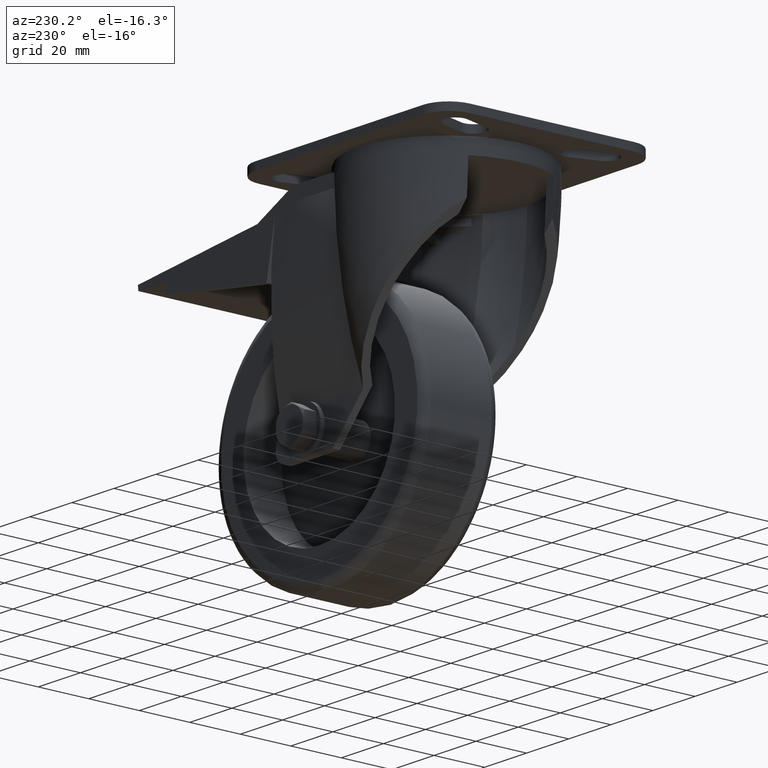
[diagram: clean part render]
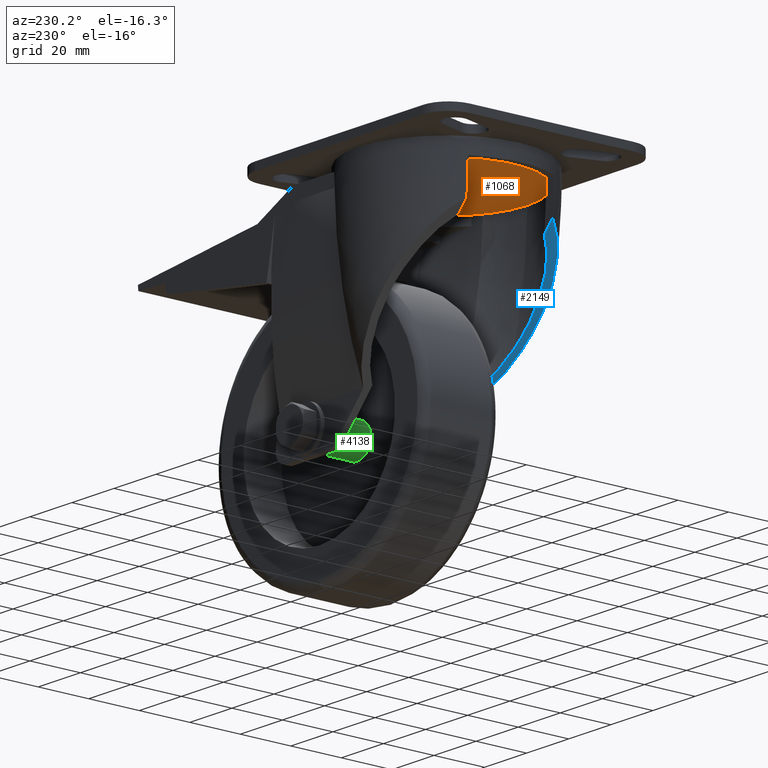
[diagram: same view with three faces highlighted in distinct colors, each labeled with its STEP entity id]
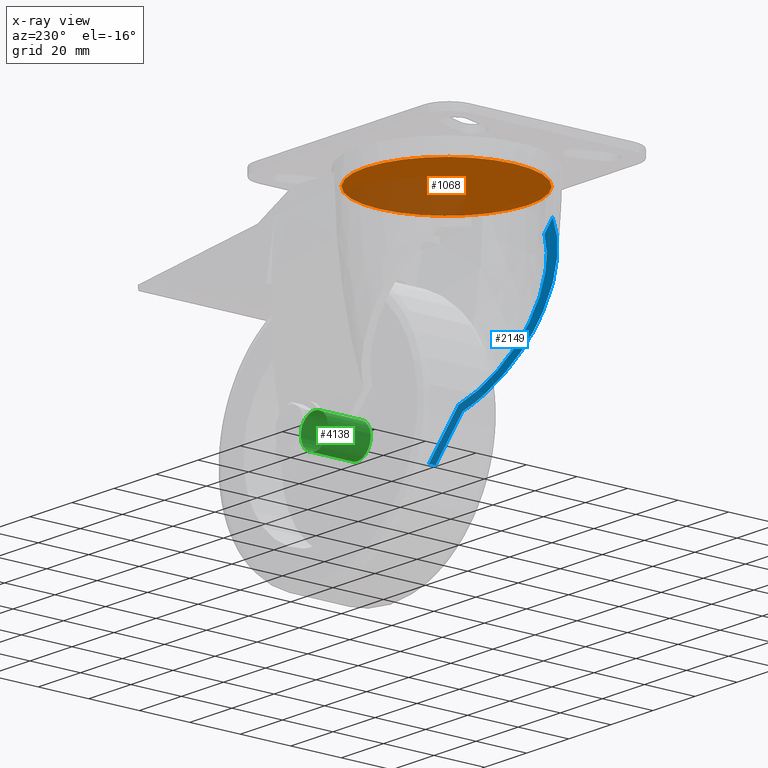
[diagram: x-ray of the same camera — body ghosted, the three highlighted faces saturated]
A machine part, auxiliary view with three faces highlighted in distinct colors.
The next image is the same camera in x-ray (body ghosted, the three faces saturated) — at least one of them is partly hidden behind the body in this view.
Their STEP definitions:

[orange] entity #1068 — the highlighted planar face has unit normal (0, 0, -1).
#887=CARTESIAN_POINT('',(-49.999999999799968,32.000233137938523,-8.961912570713196));
#888=VERTEX_POINT('',#887);
#889=CARTESIAN_POINT('',(-49.999999999799911,-32.000233137938956,-8.961912570713192));
#890=VERTEX_POINT('',#889);
#891=CARTESIAN_POINT('',(-49.999999999799968,-1.801013E-013,-8.961912570713194));
#892=DIRECTION('',(6.938894E-018,-6.123234E-017,-1.0));
#893=DIRECTION('',(0.0,-1.0,6.123234E-017));
#894=AXIS2_PLACEMENT_3D('',#891,#892,#893);
#895=CIRCLE('',#894,32.000233137938700);
#896=EDGE_CURVE('',#888,#890,#895,.T.);
#898=CARTESIAN_POINT('',(-49.999999999799968,-1.801013E-013,-8.961912570713194));
#899=DIRECTION('',(6.938894E-018,-6.123234E-017,-1.0));
#900=DIRECTION('',(0.0,-1.0,6.123234E-017));
#901=AXIS2_PLACEMENT_3D('',#898,#899,#900);
#902=CIRCLE('',#901,32.000233137938700);
#903=EDGE_CURVE('',#890,#888,#902,.T.);
#1059=CARTESIAN_POINT('',(14.000466276077475,-64.000466275877557,-8.961912570713134));
#1060=DIRECTION('',(0.0,0.0,-1.0));
#1061=DIRECTION('',(-1.0,0.0,0.0));
#1062=AXIS2_PLACEMENT_3D('',#1059,#1060,#1061);
#1063=PLANE('',#1062);
#1064=ORIENTED_EDGE('',*,*,#903,.T.);
#1065=ORIENTED_EDGE('',*,*,#896,.T.);
#1066=EDGE_LOOP('',(#1064,#1065));
#1067=FACE_OUTER_BOUND('',#1066,.T.);
#1068=ADVANCED_FACE('',(#1067),#1063,.T.);

[blue] entity #2149 — the highlighted planar face has unit normal (-0.7406, -0, -0.672).
#905=CARTESIAN_POINT('',(-49.999999999799911,-26.763269676771543,-55.371295994122988));
#906=VERTEX_POINT('',#905);
#914=CARTESIAN_POINT('',(-75.997829618489433,-17.070057319302190,-26.720628955868161));
#915=VERTEX_POINT('',#914);
#916=CARTESIAN_POINT('',(-49.999999999799854,-26.763269676771600,-55.371295994122875));
#917=CARTESIAN_POINT('',(-50.614587426501828,-26.909073834747133,-54.693995619953228));
#918=CARTESIAN_POINT('',(-52.219219619068269,-27.226570763894941,-52.925625593073960));
#919=CARTESIAN_POINT('',(-54.880962621150388,-27.487757558576803,-49.992276399796424));
#920=CARTESIAN_POINT('',(-57.363643355851025,-27.424364957538572,-47.256261125074161));
#921=CARTESIAN_POINT('',(-60.285260750926966,-27.082730510361742,-44.036519763673539));
#922=CARTESIAN_POINT('',(-63.539265957512796,-26.317679306233018,-40.450473469235931));
#923=CARTESIAN_POINT('',(-67.287113011007264,-24.696424885429352,-36.320193522258592));
#924=CARTESIAN_POINT('',(-69.988399160700979,-22.983679663955698,-33.343265835584987));
#925=CARTESIAN_POINT('',(-72.238062818980850,-21.217583582109810,-30.864045610431727));
#926=CARTESIAN_POINT('',(-74.110657615077756,-19.427890744904982,-28.800365341702612));
#927=CARTESIAN_POINT('',(-75.461474775313704,-17.791388445375514,-27.311719795822508));
#928=CARTESIAN_POINT('',(-75.997834550662461,-17.070049722941075,-26.720629479376210));
#929=B_SPLINE_CURVE_WITH_KNOTS('',3,(#916,#917,#918,#919,#920,#921,#922,#923,#924,#925,#926,#927,#928),.UNSPECIFIED.,.F.,.U.,(4,1,1,1,1,1,1,1,1,1,4),(0.0,2.778685228067535,7.223742526664044,11.899304513463292,13.853604178024506,20.304977110839516,26.578740725815894,31.240803553927275,33.394100059583572,37.929782912720867,41.158542147736640),.UNSPECIFIED.);
#930=EDGE_CURVE('',#906,#915,#929,.T.);
#1032=CARTESIAN_POINT('',(-35.156391064253967,-17.070057319302080,-71.729557568106372));
#1033=VERTEX_POINT('',#1032);
#1043=CARTESIAN_POINT('',(-35.156387806788416,-17.070053926571020,-71.729559016426720));
#1044=CARTESIAN_POINT('',(-35.753057416879642,-17.843208513759649,-71.072004805890685));
#1045=CARTESIAN_POINT('',(-37.260875185255657,-19.592675801133183,-69.410331810364312));
#1046=CARTESIAN_POINT('',(-39.350337934631625,-21.481499034311767,-67.107657124282412));
#1047=CARTESIAN_POINT('',(-41.900756098277270,-23.354176920576393,-64.296992713220561));
#1048=CARTESIAN_POINT('',(-44.640623778016675,-24.943198473012686,-61.277546827206038));
#1049=CARTESIAN_POINT('',(-47.572875730277190,-26.115073873999293,-58.046085791706730));
#1050=CARTESIAN_POINT('',(-49.380276327878732,-26.616247000686670,-56.054256719704767));
#1051=CARTESIAN_POINT('',(-49.999999999799854,-26.763269676771600,-55.371295994122875));
#1052=B_SPLINE_CURVE_WITH_KNOTS('',3,(#1043,#1044,#1045,#1046,#1047,#1048,#1049,#1050,#1051),.UNSPECIFIED.,.F.,.U.,(4,1,1,1,1,1,4),(0.0,3.533590945473480,8.521628627790923,10.893577073032283,16.225339000133832,21.627750609693020,24.429674919914348),.UNSPECIFIED.);
#1053=EDGE_CURVE('',#1033,#906,#1052,.T.);
#1132=CARTESIAN_POINT('',(-49.999999999799911,-29.830632426225193,-55.371295994122647));
#1133=VERTEX_POINT('',#1132);
#1141=CARTESIAN_POINT('',(-34.001522241716145,-19.694907978292079,-73.002270044212594));
#1142=VERTEX_POINT('',#1141);
#1143=CARTESIAN_POINT('',(-49.999999999799911,-29.830632426225193,-55.371295994122534));
#1144=CARTESIAN_POINT('',(-49.332071627531718,-29.674264299426071,-56.107380262691663));
#1145=CARTESIAN_POINT('',(-47.487297262128948,-29.170065499494413,-58.140396737862829));
#1146=CARTESIAN_POINT('',(-44.027750289801133,-27.833116941151061,-61.952958453050087));
#1147=CARTESIAN_POINT('',(-40.456232197667873,-25.759484175648723,-65.888916580832927));
#1148=CARTESIAN_POINT('',(-37.328937346975806,-23.258503914869166,-69.335323491155009));
#1149=CARTESIAN_POINT('',(-35.417269467878313,-21.365926033237553,-71.442057744986442));
#1150=CARTESIAN_POINT('',(-34.342528701804049,-20.114222904187450,-72.626468242591130));
#1151=CARTESIAN_POINT('',(-34.001518002184014,-19.694916795246897,-73.002276034714299));
#1152=B_SPLINE_CURVE_WITH_KNOTS('',3,(#1143,#1144,#1145,#1146,#1147,#1148,#1149,#1150,#1151),.UNSPECIFIED.,.F.,.U.,(4,1,1,1,1,1,4),(0.0,3.018874180140403,8.370022439182032,15.940226582114182,20.087509144883072,24.203299280373241,26.178165322942448),.UNSPECIFIED.);
#1153=EDGE_CURVE('',#1133,#1142,#1152,.T.);
#1256=CARTESIAN_POINT('',(-79.925217987626908,-17.070057319302077,-22.392487024620888));
#1257=VERTEX_POINT('',#1256);
#1266=CARTESIAN_POINT('',(-79.925244709815004,-17.070010174956519,-22.392489157873907));
#1267=CARTESIAN_POINT('',(-79.408977666023574,-17.895604017642835,-22.961436465839139));
#1268=CARTESIAN_POINT('',(-78.042745384829416,-19.861610594554246,-24.467025675522788));
#1269=CARTESIAN_POINT('',(-76.087325662058404,-22.067539944295458,-26.622003785112607));
#1270=CARTESIAN_POINT('',(-73.810272068798056,-24.168828758854048,-29.131405356600791));
#1271=CARTESIAN_POINT('',(-71.157591446752136,-26.197055671831450,-32.054769098896429));
#1272=CARTESIAN_POINT('',(-67.592261057688020,-28.189894500381413,-35.983907676058777));
#1273=CARTESIAN_POINT('',(-63.441468351096162,-29.699021199965856,-40.558250493472258));
#1274=CARTESIAN_POINT('',(-60.231335320058577,-30.313872181312732,-44.095947787139494));
#1275=CARTESIAN_POINT('',(-57.340726478730858,-30.563924567772247,-47.281516447375395));
#1276=CARTESIAN_POINT('',(-54.864692663273559,-30.579007780789269,-50.010206559427672));
#1277=CARTESIAN_POINT('',(-52.204215245154273,-30.291226487416751,-52.942161023641631));
#1278=CARTESIAN_POINT('',(-50.589173966081148,-29.968563427948098,-54.722002288335716));
#1279=CARTESIAN_POINT('',(-49.999999999799911,-29.830632426225193,-55.371295994122534));
#1280=B_SPLINE_CURVE_WITH_KNOTS('',3,(#1266,#1267,#1268,#1269,#1270,#1271,#1272,#1273,#1274,#1275,#1276,#1277,#1278,#1279),.UNSPECIFIED.,.F.,.U.,(4,1,1,1,1,1,1,1,1,1,1,4),(0.0,3.384686483772321,8.470962048703100,10.930897247991156,15.341025147912760,21.768512934842406,27.898016032199333,34.386944539795678,36.195406228810349,40.822976601638700,45.432673832342914,48.095523972636762),.UNSPECIFIED.);
#1281=EDGE_CURVE('',#1257,#1133,#1280,.T.);
#1315=CARTESIAN_POINT('',(-79.925217987626908,-17.070057319302077,-22.392487024620888));
#1316=DIRECTION('',(0.671989936580124,0.0,-0.740560277853897));
#1317=VECTOR('',#1316,5.844415452297811);
#1318=LINE('',#1315,#1317);
#1319=EDGE_CURVE('',#1257,#915,#1318,.T.);
#2115=CARTESIAN_POINT('',(-21.103968454595076,-30.581696644038193,-87.215899588778029));
#2116=DIRECTION('',(-0.740560277853895,-2.901351E-016,-0.671989936580127));
#2117=DIRECTION('',(-0.671989936580127,-1.905762E-016,0.740560277853895));
#2118=AXIS2_PLACEMENT_3D('',#2115,#2116,#2117);
#2119=PLANE('',#2118);
#2120=ORIENTED_EDGE('',*,*,#1319,.T.);
#2121=ORIENTED_EDGE('',*,*,#930,.F.);
#2122=ORIENTED_EDGE('',*,*,#1053,.F.);
#2123=CARTESIAN_POINT('',(-21.109351848641438,-17.070057319302197,-87.209966869292600));
#2124=VERTEX_POINT('',#2123);
#2125=CARTESIAN_POINT('',(-35.156391064253967,-17.070057319302080,-71.729557568106372));
#2126=DIRECTION('',(0.671989936580127,8.497833E-016,-0.740560277853894));
#2127=VECTOR('',#2126,20.903645205016566);
#2128=LINE('',#2125,#2127);
#2129=EDGE_CURVE('',#1033,#2124,#2128,.T.);
#2130=ORIENTED_EDGE('',*,*,#2129,.T.);
#2131=CARTESIAN_POINT('',(-21.109351848641438,-19.694916795246929,-87.209966869292600));
#2132=VERTEX_POINT('',#2131);
#2133=CARTESIAN_POINT('',(-21.109351848641445,-19.694916795246836,-87.209966869292600));
#2134=DIRECTION('',(0.0,1.0,0.0));
#2135=VECTOR('',#2134,2.624859475944760);
#2136=LINE('',#2133,#2135);
#2137=EDGE_CURVE('',#2132,#2124,#2136,.T.);
#2138=ORIENTED_EDGE('',*,*,#2137,.F.);
#2139=CARTESIAN_POINT('',(-34.001522241716145,-19.694907978292079,-73.002270044212594));
#2140=DIRECTION('',(0.671989936580056,-0.000000459573891,-0.740560277853816));
#2141=VECTOR('',#2140,19.185064673269647);
#2142=LINE('',#2139,#2141);
#2143=EDGE_CURVE('',#1142,#2132,#2142,.T.);
#2144=ORIENTED_EDGE('',*,*,#2143,.F.);
#2145=ORIENTED_EDGE('',*,*,#1153,.F.);
#2146=ORIENTED_EDGE('',*,*,#1281,.F.);
#2147=EDGE_LOOP('',(#2120,#2121,#2122,#2130,#2138,#2144,#2145,#2146));
#2148=FACE_OUTER_BOUND('',#2147,.T.);
#2149=ADVANCED_FACE('',(#2148),#2119,.T.);

[green] entity #4138 — the highlighted cylindrical surface (bore or boss wall) has radius 6.5 mm, axis along (-0, 1, -0).
#4088=CARTESIAN_POINT('',(-7.500010389969305,-4.118294E-013,-80.075073123268339));
#4089=DIRECTION('',(-5.273559E-016,1.0,-6.123234E-017));
#4090=DIRECTION('',(6.938894E-018,6.123234E-017,1.0));
#4091=AXIS2_PLACEMENT_3D('',#4088,#4089,#4090);
#4092=CYLINDRICAL_SURFACE('',#4091,6.499999999973994);
#4093=CARTESIAN_POINT('',(-7.500010389969248,-2.977446E-013,-73.575073123294374));
#4094=VERTEX_POINT('',#4093);
#4095=CARTESIAN_POINT('',(-7.500010389969305,-4.122274E-013,-86.575073123242333));
#4096=VERTEX_POINT('',#4095);
#4097=CARTESIAN_POINT('',(-7.500010389969305,-4.118294E-013,-80.075073123268339));
#4098=DIRECTION('',(-5.273559E-016,1.0,-6.123234E-017));
#4099=DIRECTION('',(6.938894E-018,6.123234E-017,1.0));
#4100=AXIS2_PLACEMENT_3D('',#4097,#4098,#4099);
#4101=CIRCLE('',#4100,6.499999999973994);
#4102=EDGE_CURVE('',#4094,#4096,#4101,.T.);
#4103=ORIENTED_EDGE('',*,*,#4102,.T.);
#4104=CARTESIAN_POINT('',(-7.500010389969305,-4.118294E-013,-80.075073123268339));
#4105=DIRECTION('',(-5.273559E-016,1.0,-6.123234E-017));
#4106=DIRECTION('',(6.938894E-018,6.123234E-017,1.0));
#4107=AXIS2_PLACEMENT_3D('',#4104,#4105,#4106);
#4108=CIRCLE('',#4107,6.499999999973994);
#4109=EDGE_CURVE('',#4096,#4094,#4108,.T.);
#4110=ORIENTED_EDGE('',*,*,#4109,.T.);
#4111=CARTESIAN_POINT('',(-7.500010389969305,16.929942680698147,-73.575073123294374));
#4112=VERTEX_POINT('',#4111);
#4113=CARTESIAN_POINT('',(-7.500010389969248,-2.977446E-013,-73.575073123294374));
#4114=DIRECTION('',(0.0,1.0,0.0));
#4115=VECTOR('',#4114,16.929942680698510);
#4116=LINE('',#4113,#4115);
#4117=EDGE_CURVE('',#4094,#4112,#4116,.T.);
#4118=ORIENTED_EDGE('',*,*,#4117,.T.);
#4119=CARTESIAN_POINT('',(-7.500010389969305,16.929942680698144,-86.575073123242333));
#4120=VERTEX_POINT('',#4119);
#4121=CARTESIAN_POINT('',(-7.500010389969305,16.929942680698147,-80.075073123268339));
#4122=DIRECTION('',(-5.273559E-016,1.0,-6.123234E-017));
#4123=DIRECTION('',(6.938894E-018,6.123234E-017,1.0));
#4124=AXIS2_PLACEMENT_3D('',#4121,#4122,#4123);
#4125=CIRCLE('',#4124,6.499999999973994);
#4126=EDGE_CURVE('',#4120,#4112,#4125,.T.);
#4127=ORIENTED_EDGE('',*,*,#4126,.F.);
#4128=CARTESIAN_POINT('',(-7.500010389969305,16.929942680698147,-80.075073123268339));
#4129=DIRECTION('',(-5.273559E-016,1.0,-6.123234E-017));
#4130=DIRECTION('',(6.938894E-018,6.123234E-017,1.0));
#4131=AXIS2_PLACEMENT_3D('',#4128,#4129,#4130);
#4132=CIRCLE('',#4131,6.499999999973994);
#4133=EDGE_CURVE('',#4112,#4120,#4132,.T.);
#4134=ORIENTED_EDGE('',*,*,#4133,.F.);
#4135=ORIENTED_EDGE('',*,*,#4117,.F.);
#4136=EDGE_LOOP('',(#4103,#4110,#4118,#4127,#4134,#4135));
#4137=FACE_OUTER_BOUND('',#4136,.T.);
#4138=ADVANCED_FACE('',(#4137),#4092,.T.);